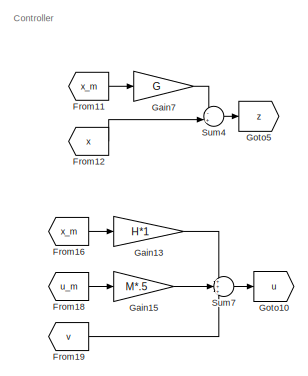
[diagram: root canvas - part 1/4, top center region]
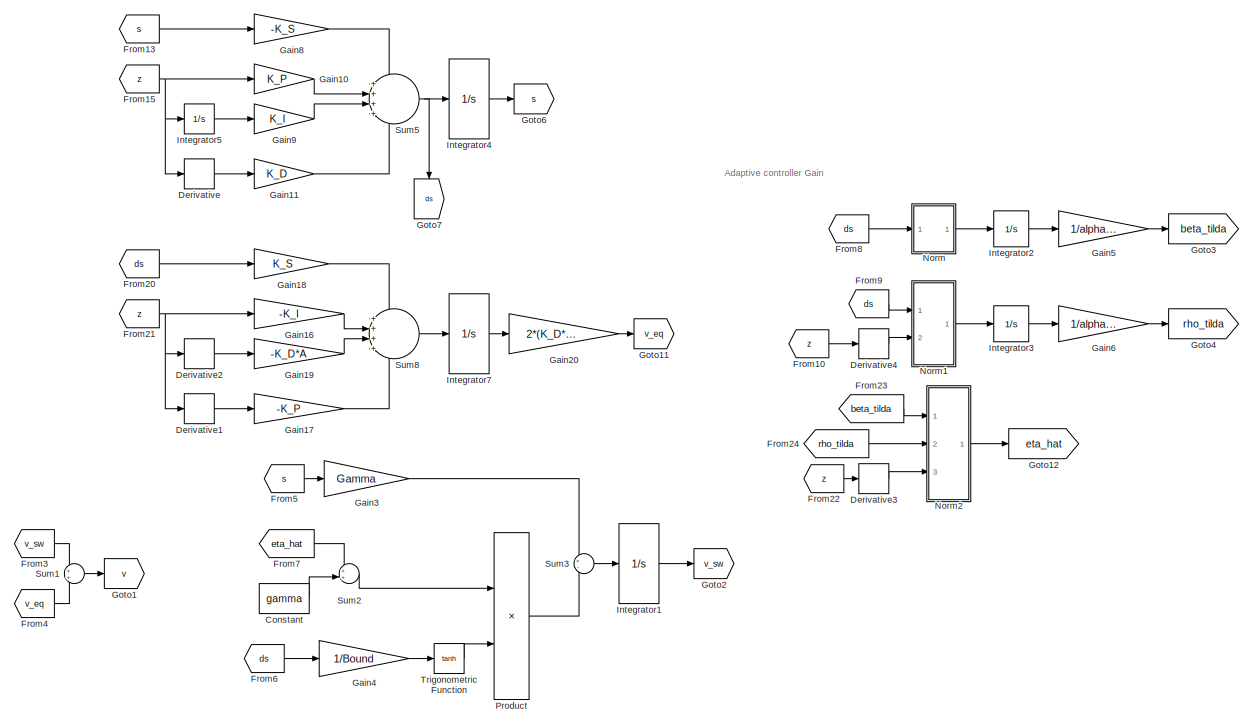
[diagram: root canvas - part 2/4, top right region]
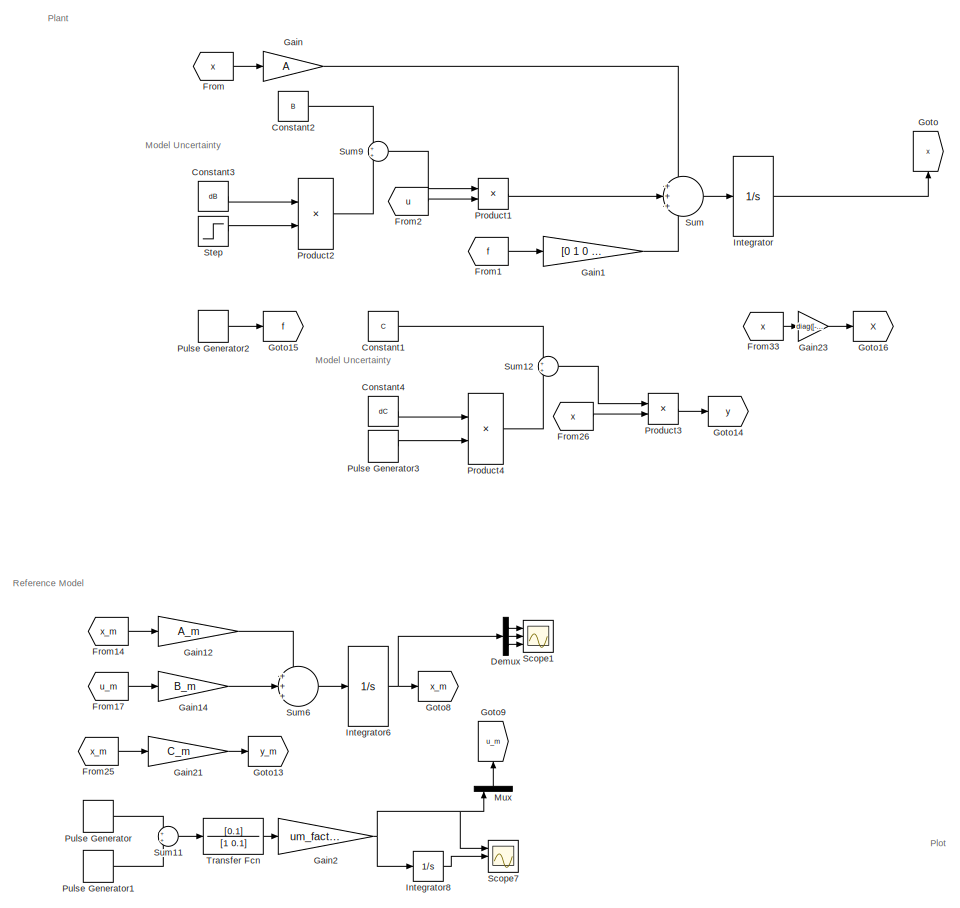
[diagram: root canvas - part 3/4, middle left region]
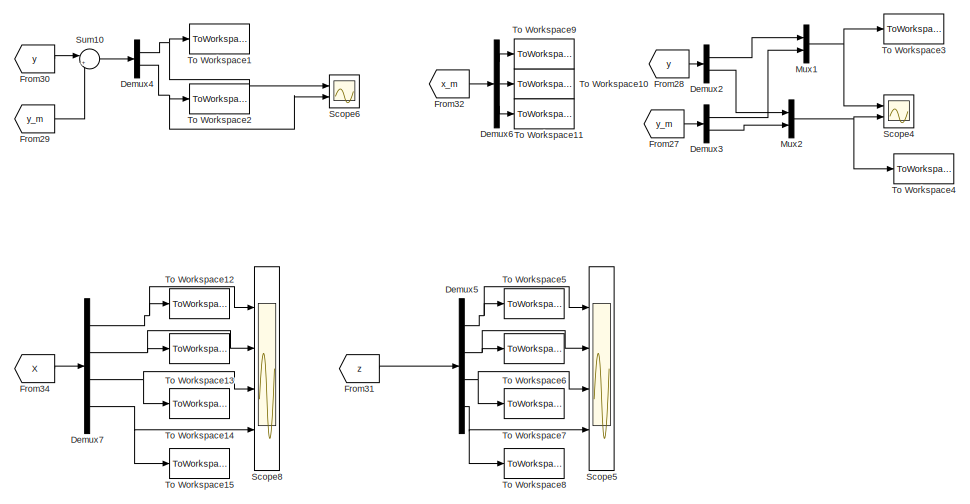
[diagram: root canvas - part 4/4, bottom center region]
MODEL slx_e4a85e4770d8
KIND model
CONFIG AbsTol = auto
CONFIG EnableMultiTasking = on
CONFIG FixedStep = 1e-2
CONFIG MaxStep = auto
CONFIG MinStep = auto
CONFIG RelTol = 1e-8
CONFIG SampleTimeConstraint = Unconstrained
CONFIG Solver = ode3
CONFIG SolverName = ode3
CONFIG StartTime = 0.0
CONFIG StopTime = 500
BLOCK [Constant] Constant
  Value = gamma
BLOCK [Constant] Constant1
  Value = C
BLOCK [Constant] Constant2
  Value = B
BLOCK [Constant] Constant3
  Value = dB
BLOCK [Constant] Constant4
  Value = dC
BLOCK [Demux] Demux
  DisplayOption = bar
  Outputs = 3
  Ports = [1, 3]
BLOCK [Demux] Demux2
  DisplayOption = bar
  Outputs = 2
  Ports = [1, 2]
BLOCK [Demux] Demux3
  DisplayOption = bar
  Outputs = 2
  Ports = [1, 2]
BLOCK [Demux] Demux4
  DisplayOption = bar
  Outputs = 2
  Ports = [1, 2]
BLOCK [Demux] Demux5
  DisplayOption = bar
  Ports = [1, 4]
BLOCK [Demux] Demux6
  DisplayOption = bar
  Outputs = 3
  Ports = [1, 3]
BLOCK [Demux] Demux7
  DisplayOption = bar
  Ports = [1, 4]
BLOCK [Derivative] Derivative
BLOCK [Derivative] Derivative1
BLOCK [Derivative] Derivative2
BLOCK [Derivative] Derivative3
BLOCK [Derivative] Derivative4
BLOCK [From] From
  GotoTag = x
BLOCK [From] From1
  GotoTag = f
BLOCK [From] From10
  GotoTag = z
BLOCK [From] From11
  GotoTag = x_m
BLOCK [From] From12
  GotoTag = x
BLOCK [From] From13
  GotoTag = s
BLOCK [From] From14
  GotoTag = x_m
BLOCK [From] From15
  GotoTag = z
BLOCK [From] From16
  GotoTag = x_m
BLOCK [From] From17
  GotoTag = u_m
BLOCK [From] From18
  GotoTag = u_m
BLOCK [From] From19
  GotoTag = v
BLOCK [From] From2
  GotoTag = u
BLOCK [From] From20
  GotoTag = ds
BLOCK [From] From21
  GotoTag = z
BLOCK [From] From22
  GotoTag = z
BLOCK [From] From23
  GotoTag = beta_tilda
BLOCK [From] From24
  GotoTag = rho_tilda
BLOCK [From] From25
  GotoTag = x_m
BLOCK [From] From26
  GotoTag = x
BLOCK [From] From27
  GotoTag = y_m
BLOCK [From] From28
  GotoTag = y
BLOCK [From] From29
  GotoTag = y_m
BLOCK [From] From3
  GotoTag = v_sw
BLOCK [From] From30
  GotoTag = y
BLOCK [From] From31
  GotoTag = z
BLOCK [From] From32
  GotoTag = x_m
BLOCK [From] From33
  GotoTag = x
BLOCK [From] From34
  GotoTag = X
BLOCK [From] From4
  GotoTag = v_eq
BLOCK [From] From5
  GotoTag = s
BLOCK [From] From6
  GotoTag = ds
BLOCK [From] From7
  GotoTag = eta_hat
BLOCK [From] From8
  GotoTag = ds
BLOCK [From] From9
  GotoTag = ds
BLOCK [Gain] Gain
  Gain = A
  Multiplication = Matrix(K*u)
  OutDataTypeStr = Inherit: Inherit via internal rule
  ParamDataTypeStr = Inherit: Inherit via internal rule
  SaturateOnIntegerOverflow = off
BLOCK [Gain] Gain1
  Gain = [0 1 0 0]'
  Multiplication = Matrix(K*u)
  OutDataTypeStr = Inherit: Inherit via internal rule
  ParamDataTypeStr = Inherit: Inherit via internal rule
  SaturateOnIntegerOverflow = off
BLOCK [Gain] Gain10
  Gain = K_P
  Multiplication = Matrix(K*u)
  OutDataTypeStr = Inherit: Inherit via internal rule
  ParamDataTypeStr = Inherit: Inherit via internal rule
  SaturateOnIntegerOverflow = off
BLOCK [Gain] Gain11
  Gain = K_D
  Multiplication = Matrix(K*u)
  OutDataTypeStr = Inherit: Inherit via internal rule
  ParamDataTypeStr = Inherit: Inherit via internal rule
  SaturateOnIntegerOverflow = off
BLOCK [Gain] Gain12
  Gain = A_m
  Multiplication = Matrix(K*u)
  OutDataTypeStr = Inherit: Inherit via internal rule
  ParamDataTypeStr = Inherit: Inherit via internal rule
  SaturateOnIntegerOverflow = off
BLOCK [Gain] Gain13
  Gain = H*1
  Multiplication = Matrix(K*u)
  OutDataTypeStr = Inherit: Inherit via internal rule
  ParamDataTypeStr = Inherit: Inherit via internal rule
  SaturateOnIntegerOverflow = off
BLOCK [Gain] Gain14
  Gain = B_m
  Multiplication = Matrix(K*u)
  OutDataTypeStr = Inherit: Inherit via internal rule
  ParamDataTypeStr = Inherit: Inherit via internal rule
  SaturateOnIntegerOverflow = off
BLOCK [Gain] Gain15
  Gain = M*.5
  Multiplication = Matrix(K*u)
  OutDataTypeStr = Inherit: Inherit via internal rule
  ParamDataTypeStr = Inherit: Inherit via internal rule
  SaturateOnIntegerOverflow = off
BLOCK [Gain] Gain16
  Gain = -K_I
  Multiplication = Matrix(K*u)
  OutDataTypeStr = Inherit: Inherit via internal rule
  ParamDataTypeStr = Inherit: Inherit via internal rule
  SaturateOnIntegerOverflow = off
BLOCK [Gain] Gain17
  Gain = -K_P
  Multiplication = Matrix(K*u)
  OutDataTypeStr = Inherit: Inherit via internal rule
  ParamDataTypeStr = Inherit: Inherit via internal rule
  SaturateOnIntegerOverflow = off
BLOCK [Gain] Gain18
  Gain = K_S
  Multiplication = Matrix(K*u)
  OutDataTypeStr = Inherit: Inherit via internal rule
  ParamDataTypeStr = Inherit: Inherit via internal rule
  SaturateOnIntegerOverflow = off
BLOCK [Gain] Gain19
  Gain = -K_D*A
  Multiplication = Matrix(K*u)
  OutDataTypeStr = Inherit: Inherit via internal rule
  ParamDataTypeStr = Inherit: Inherit via internal rule
  SaturateOnIntegerOverflow = off
BLOCK [Gain] Gain2
  Gain = um_factor
  OutDataTypeStr = Inherit: Inherit via internal rule
  ParamDataTypeStr = Inherit: Inherit via internal rule
  SaturateOnIntegerOverflow = off
BLOCK [Gain] Gain20
  Gain = 2*(K_D*B)^-1
  Multiplication = Matrix(K*u)
  OutDataTypeStr = Inherit: Inherit via internal rule
  ParamDataTypeStr = Inherit: Inherit via internal rule
  SaturateOnIntegerOverflow = off
BLOCK [Gain] Gain21
  Gain = C_m
  Multiplication = Matrix(K*u)
  OutDataTypeStr = Inherit: Inherit via internal rule
  ParamDataTypeStr = Inherit: Inherit via internal rule
  SaturateOnIntegerOverflow = off
BLOCK [Gain] Gain23
  Gain = diag([-1 1 1 1])
  Multiplication = Matrix(K*u)
  OutDataTypeStr = Inherit: Inherit via internal rule
  ParamDataTypeStr = Inherit: Inherit via internal rule
  SaturateOnIntegerOverflow = off
BLOCK [Gain] Gain3
  Gain = Gamma
  Multiplication = Matrix(K*u)
  OutDataTypeStr = Inherit: Inherit via internal rule
  ParamDataTypeStr = Inherit: Inherit via internal rule
  SaturateOnIntegerOverflow = off
BLOCK [Gain] Gain4
  Gain = 1/Bound
  OutDataTypeStr = Inherit: Inherit via internal rule
  ParamDataTypeStr = Inherit: Inherit via internal rule
  SaturateOnIntegerOverflow = off
BLOCK [Gain] Gain5
  Gain = 1/alpha_0
  OutDataTypeStr = Inherit: Inherit via internal rule
  ParamDataTypeStr = Inherit: Inherit via internal rule
  SaturateOnIntegerOverflow = off
BLOCK [Gain] Gain6
  Gain = 1/alpha_1
  OutDataTypeStr = Inherit: Inherit via internal rule
  ParamDataTypeStr = Inherit: Inherit via internal rule
  SaturateOnIntegerOverflow = off
BLOCK [Gain] Gain7
  Gain = G
  Multiplication = Matrix(K*u)
  OutDataTypeStr = Inherit: Inherit via internal rule
  ParamDataTypeStr = Inherit: Inherit via internal rule
  SaturateOnIntegerOverflow = off
BLOCK [Gain] Gain8
  Gain = -K_S
  Multiplication = Matrix(K*u)
  OutDataTypeStr = Inherit: Inherit via internal rule
  ParamDataTypeStr = Inherit: Inherit via internal rule
  SaturateOnIntegerOverflow = off
BLOCK [Gain] Gain9
  Gain = K_I
  Multiplication = Matrix(K*u)
  OutDataTypeStr = Inherit: Inherit via internal rule
  ParamDataTypeStr = Inherit: Inherit via internal rule
  SaturateOnIntegerOverflow = off
BLOCK [Goto] Goto
  GotoTag = x
BLOCK [Goto] Goto1
  GotoTag = v
BLOCK [Goto] Goto10
  GotoTag = u
BLOCK [Goto] Goto11
  GotoTag = v_eq
BLOCK [Goto] Goto12
  GotoTag = eta_hat
BLOCK [Goto] Goto13
  GotoTag = y_m
BLOCK [Goto] Goto14
  GotoTag = y
BLOCK [Goto] Goto15
  GotoTag = f
BLOCK [Goto] Goto16
  GotoTag = X
BLOCK [Goto] Goto2
  GotoTag = v_sw
BLOCK [Goto] Goto3
  GotoTag = beta_tilda
BLOCK [Goto] Goto4
  GotoTag = rho_tilda
BLOCK [Goto] Goto5
  GotoTag = z
BLOCK [Goto] Goto6
  GotoTag = s
BLOCK [Goto] Goto7
  GotoTag = ds
BLOCK [Goto] Goto8
  GotoTag = x_m
BLOCK [Goto] Goto9
  GotoTag = u_m
BLOCK [Integrator] Integrator
  InitialCondition = [50 60 9 -950]
  Ports = [1, 1]
BLOCK [Integrator] Integrator1
  InitialCondition = zeros(3,1)
  Ports = [1, 1]
BLOCK [Integrator] Integrator2
  Ports = [1, 1]
BLOCK [Integrator] Integrator3
  Ports = [1, 1]
BLOCK [Integrator] Integrator4
  Ports = [1, 1]
BLOCK [Integrator] Integrator5
  Ports = [1, 1]
BLOCK [Integrator] Integrator6
  InitialCondition = [ 60 9 0.05]
  Ports = [1, 1]
BLOCK [Integrator] Integrator7
  Ports = [1, 1]
BLOCK [Integrator] Integrator8
  InitialCondition = 35
  Ports = [1, 1]
BLOCK [Mux] Mux
  DisplayOption = bar
  Inputs = 3
  Ports = [3, 1]
BLOCK [Mux] Mux1
  DisplayOption = bar
  Inputs = 2
  Ports = [2, 1]
BLOCK [Mux] Mux2
  DisplayOption = bar
  Inputs = 2
  Ports = [2, 1]
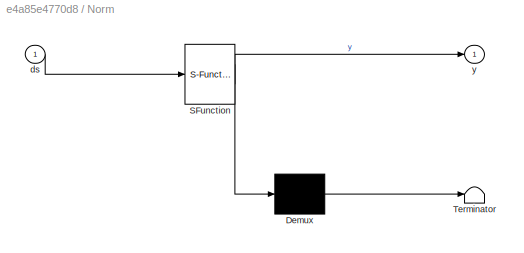
BLOCK [SubSystem] Norm
  ErrorFcn = Stateflow.Translate.translate
  PermitHierarchicalResolution = ExplicitOnly
  Ports = [1, 1]
  RequestExecContextInheritance = off
  SFBlockType = MATLAB Function
  TreatAsAtomicUnit = on
  Variant = off
BLOCK [Demux] Norm/ Demux 
  Outputs = 1
  Ports = [1, 1]
BLOCK [S-Function] Norm/ SFunction 
  EnableBusSupport = on
  FunctionName = sf_sfun
  PortCounts = [1 2]
  Ports = [1, 2]
  SFcnIsStateOwnerBlock = off
  SFunctionDeploymentMode = off
  Tag = Stateflow S-Function simulation 2
BLOCK [Terminator] Norm/ Terminator 
BLOCK [Inport] Norm/ds
  IconDisplay = Port number
BLOCK [Outport] Norm/y
  IconDisplay = Port number
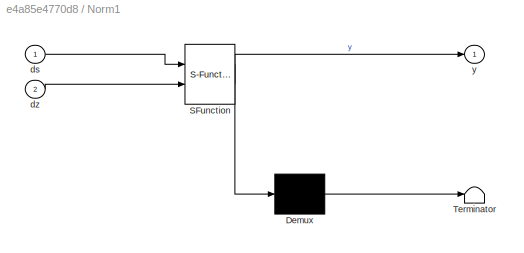
BLOCK [SubSystem] Norm1
  ErrorFcn = Stateflow.Translate.translate
  PermitHierarchicalResolution = ExplicitOnly
  Ports = [2, 1]
  RequestExecContextInheritance = off
  SFBlockType = MATLAB Function
  TreatAsAtomicUnit = on
  Variant = off
BLOCK [Demux] Norm1/ Demux 
  Outputs = 1
  Ports = [1, 1]
BLOCK [S-Function] Norm1/ SFunction 
  EnableBusSupport = on
  FunctionName = sf_sfun
  PortCounts = [2 2]
  Ports = [2, 2]
  SFcnIsStateOwnerBlock = off
  SFunctionDeploymentMode = off
  Tag = Stateflow S-Function simulation 1
BLOCK [Terminator] Norm1/ Terminator 
BLOCK [Inport] Norm1/ds
  IconDisplay = Port number
BLOCK [Inport] Norm1/dz
  IconDisplay = Port number
  Port = 2
BLOCK [Outport] Norm1/y
  IconDisplay = Port number
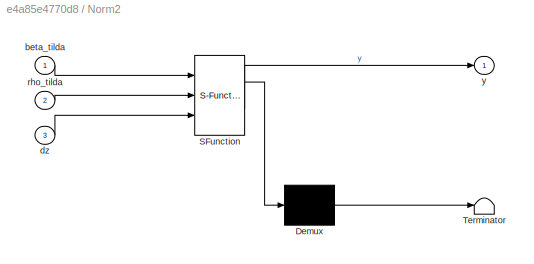
BLOCK [SubSystem] Norm2
  ErrorFcn = Stateflow.Translate.translate
  PermitHierarchicalResolution = ExplicitOnly
  Ports = [3, 1]
  RequestExecContextInheritance = off
  SFBlockType = MATLAB Function
  TreatAsAtomicUnit = on
  Variant = off
BLOCK [Demux] Norm2/ Demux 
  Outputs = 1
  Ports = [1, 1]
BLOCK [S-Function] Norm2/ SFunction 
  EnableBusSupport = on
  FunctionName = sf_sfun
  PortCounts = [3 2]
  Ports = [3, 2]
  SFcnIsStateOwnerBlock = off
  SFunctionDeploymentMode = off
  Tag = Stateflow S-Function simulation 3
BLOCK [Terminator] Norm2/ Terminator 
BLOCK [Inport] Norm2/beta_tilda
  IconDisplay = Port number
BLOCK [Inport] Norm2/dz
  IconDisplay = Port number
  Port = 3
BLOCK [Inport] Norm2/rho_tilda
  IconDisplay = Port number
  Port = 2
BLOCK [Outport] Norm2/y
  IconDisplay = Port number
BLOCK [Product] Product
  InputSameDT = off
  OutDataTypeStr = Inherit: Inherit via internal rule
  Ports = [2, 1]
  RndMeth = Floor
  SaturateOnIntegerOverflow = off
BLOCK [Product] Product1
  InputSameDT = off
  Multiplication = Matrix(*)
  OutDataTypeStr = Inherit: Inherit via internal rule
  Ports = [2, 1]
  RndMeth = Floor
  SaturateOnIntegerOverflow = off
BLOCK [Product] Product2
  InputSameDT = off
  OutDataTypeStr = Inherit: Inherit via internal rule
  Ports = [2, 1]
  RndMeth = Floor
  SaturateOnIntegerOverflow = off
BLOCK [Product] Product3
  InputSameDT = off
  Multiplication = Matrix(*)
  OutDataTypeStr = Inherit: Inherit via internal rule
  Ports = [2, 1]
  RndMeth = Floor
  SaturateOnIntegerOverflow = off
BLOCK [Product] Product4
  InputSameDT = off
  OutDataTypeStr = Inherit: Inherit via internal rule
  Ports = [2, 1]
  RndMeth = Floor
  SaturateOnIntegerOverflow = off
BLOCK [DiscretePulseGenerator] Pulse Generator
  Amplitude = 1.9
  Period = 100
  Ports = [0, 1]
  PulseType = Time based
  PulseWidth = 50
BLOCK [DiscretePulseGenerator] Pulse Generator1
  Amplitude = -.5
  Period = 100
  PhaseDelay = 50
  Ports = [0, 1]
  PulseType = Time based
  PulseWidth = 50
BLOCK [DiscretePulseGenerator] Pulse Generator2
  Amplitude = 10
  Period = 60
  Ports = [0, 1]
  PulseType = Time based
  PulseWidth = 50
BLOCK [DiscretePulseGenerator] Pulse Generator3
  Period = 100
  Ports = [0, 1]
  PulseType = Time based
  PulseWidth = 50
BLOCK [Scope] Scope1
  NumInputPorts = 3
  Ports = [3]
  ScopeSpecificationString = C++SS(StrPVP('Location','[1, 48, 1367, 727]'),StrPVP('Open','off'),MxPVP('AxesTitles',53,'struct(''axes1'',''%<SignalLabel>'',''axes2'',''%<SignalLabel>'',''axes3'',''%<SignalLabel>'')'),MxPVP('ScopeGraphics',56,'struct(''FigureColor'',''[0.5 0.5 0.5]'',''AxesColor'',''[0 0 0]'',''AxesTickColor'',''[1 1 1]'',''LineColors'',''[1 1 0;1 0 1;0 1 1;1 0 0;0 1 0;0 0 1]'',''LineStyles'',''-|-|-|-|-|-'',''...<+302ch>
BLOCK [Scope] Scope4
  NumInputPorts = 2
  Ports = [2]
  ScopeSpecificationString = C++SS(StrPVP('Location','[1, 48, 1367, 727]'),StrPVP('Open','off'),StrPVP('ZoomMode','yonly'),MxPVP('AxesTitles',53,'struct(''axes1'',''%<SignalLabel>'',''axes2'',''%<SignalLabel>'')'),MxPVP('ScopeGraphics',56,'struct(''FigureColor'',''[0.5 0.5 0.5]'',''AxesColor'',''[0 0 0]'',''AxesTickColor'',''[1 1 1]'',''LineColors'',''[1 1 0;1 0 1;0 1 1;1 0 0;0 1 0;0 0 1]'',''LineStyles'',''-|-|-|-|-|-'',''Li...<+295ch>
BLOCK [Scope] Scope5
  NumInputPorts = 4
  Ports = [4]
  ScopeSpecificationString = C++SS(StrPVP('Location','[1, 48, 1367, 727]'),StrPVP('Open','off'),MxPVP('AxesTitles',53,'struct(''axes1'',''%<SignalLabel>'',''axes2'',''%<SignalLabel>'',''axes3'',''%<SignalLabel>'',''axes4'',''%<SignalLabel>'')'),MxPVP('ScopeGraphics',56,'struct(''FigureColor'',''[0.5 0.5 0.5]'',''AxesColor'',''[0 0 0]'',''AxesTickColor'',''[1 1 1]'',''LineColors'',''[1 1 0;1 0 1;0 1 1;1 0 0;0 1 0;0 0 1]'',''Li...<+353ch>
BLOCK [Scope] Scope6
  NumInputPorts = 2
  Ports = [2]
  ScopeSpecificationString = C++SS(StrPVP('Location','[1, 48, 1367, 727]'),StrPVP('Open','off'),StrPVP('ZoomMode','yonly'),MxPVP('AxesTitles',53,'struct(''axes1'',''%<SignalLabel>'',''axes2'',''%<SignalLabel>'')'),MxPVP('ScopeGraphics',56,'struct(''FigureColor'',''[0.5 0.5 0.5]'',''AxesColor'',''[0 0 0]'',''AxesTickColor'',''[1 1 1]'',''LineColors'',''[1 1 0;1 0 1;0 1 1;1 0 0;0 1 0;0 0 1]'',''LineStyles'',''-|-|-|-|-|-'',''Li...<+295ch>
BLOCK [Scope] Scope7
  NumInputPorts = 3
  Ports = [3]
  ScopeSpecificationString = C++SS(StrPVP('Location','[1, 48, 1367, 727]'),StrPVP('Open','off'),MxPVP('AxesTitles',53,'struct(''axes1'',''%<SignalLabel>'',''axes2'',''%<SignalLabel>'',''axes3'',''%<SignalLabel>'')'),MxPVP('ScopeGraphics',56,'struct(''FigureColor'',''[0.5 0.5 0.5]'',''AxesColor'',''[0 0 0]'',''AxesTickColor'',''[1 1 1]'',''LineColors'',''[1 1 0;1 0 1;0 1 1;1 0 0;0 1 0;0 0 1]'',''LineStyles'',''-|-|-|-|-|-'',''...<+302ch>
BLOCK [Scope] Scope8
  NumInputPorts = 4
  Ports = [4]
  ScopeSpecificationString = C++SS(StrPVP('Location','[1, 48, 1367, 727]'),StrPVP('Open','off'),MxPVP('AxesTitles',53,'struct(''axes1'',''%<SignalLabel>'',''axes2'',''%<SignalLabel>'',''axes3'',''%<SignalLabel>'',''axes4'',''%<SignalLabel>'')'),MxPVP('ScopeGraphics',56,'struct(''FigureColor'',''[0.5 0.5 0.5]'',''AxesColor'',''[0 0 0]'',''AxesTickColor'',''[1 1 1]'',''LineColors'',''[1 1 0;1 0 1;0 1 1;1 0 0;0 1 0;0 0 1]'',''Li...<+353ch>
BLOCK [Step] Step
  After = 1.5
  SampleTime = 0
  Time = 80
BLOCK [Sum] Sum
  IconShape = round
  InputSameDT = off
  Inputs = +++
  OutDataTypeStr = Inherit: Inherit via internal rule
  Ports = [3, 1]
  SaturateOnIntegerOverflow = off
BLOCK [Sum] Sum1
  IconShape = round
  InputSameDT = off
  OutDataTypeStr = Inherit: Inherit via internal rule
  Ports = [2, 1]
  SaturateOnIntegerOverflow = off
BLOCK [Sum] Sum10
  IconShape = round
  InputSameDT = off
  Inputs = |+-
  OutDataTypeStr = Inherit: Inherit via internal rule
  Ports = [2, 1]
  SaturateOnIntegerOverflow = off
BLOCK [Sum] Sum11
  IconShape = round
  InputSameDT = off
  OutDataTypeStr = Inherit: Inherit via internal rule
  Ports = [2, 1]
  SaturateOnIntegerOverflow = off
BLOCK [Sum] Sum12
  IconShape = round
  InputSameDT = off
  OutDataTypeStr = Inherit: Inherit via internal rule
  Ports = [2, 1]
  SaturateOnIntegerOverflow = off
BLOCK [Sum] Sum2
  IconShape = round
  InputSameDT = off
  OutDataTypeStr = Inherit: Inherit via internal rule
  Ports = [2, 1]
  SaturateOnIntegerOverflow = off
BLOCK [Sum] Sum3
  IconShape = round
  InputSameDT = off
  Inputs = +-
  OutDataTypeStr = Inherit: Inherit via internal rule
  Ports = [2, 1]
  SaturateOnIntegerOverflow = off
BLOCK [Sum] Sum4
  IconShape = round
  InputSameDT = off
  Inputs = -+
  OutDataTypeStr = Inherit: Inherit via internal rule
  Ports = [2, 1]
  SaturateOnIntegerOverflow = off
BLOCK [Sum] Sum5
  IconShape = round
  InputSameDT = off
  Inputs = ++++
  OutDataTypeStr = Inherit: Inherit via internal rule
  Ports = [4, 1]
  SaturateOnIntegerOverflow = off
BLOCK [Sum] Sum6
  IconShape = round
  InputSameDT = off
  Inputs = +++
  OutDataTypeStr = Inherit: Inherit via internal rule
  Ports = [3, 1]
  SaturateOnIntegerOverflow = off
BLOCK [Sum] Sum7
  IconShape = round
  InputSameDT = off
  Inputs = +++
  OutDataTypeStr = Inherit: Inherit via internal rule
  Ports = [3, 1]
  SaturateOnIntegerOverflow = off
BLOCK [Sum] Sum8
  IconShape = round
  InputSameDT = off
  Inputs = ++++
  OutDataTypeStr = Inherit: Inherit via internal rule
  Ports = [4, 1]
  SaturateOnIntegerOverflow = off
BLOCK [Sum] Sum9
  IconShape = round
  InputSameDT = off
  OutDataTypeStr = Inherit: Inherit via internal rule
  Ports = [2, 1]
  SaturateOnIntegerOverflow = off
BLOCK [ToWorkspace] To Workspace1
  FixptAsFi = on
  MaxDataPoints = inf
  Ports = [1]
  SampleTime = -1
  Save2DSignal = 3-D array (concatenate along third dimension)
  SaveFormat = Timeseries
  VariableName = ey1
BLOCK [ToWorkspace] To Workspace10
  FixptAsFi = on
  MaxDataPoints = inf
  Ports = [1]
  SampleTime = -1
  Save2DSignal = 3-D array (concatenate along third dimension)
  SaveFormat = Timeseries
  VariableName = xm2
BLOCK [ToWorkspace] To Workspace11
  FixptAsFi = on
  MaxDataPoints = inf
  Ports = [1]
  SampleTime = -1
  Save2DSignal = 3-D array (concatenate along third dimension)
  SaveFormat = Timeseries
  VariableName = xm3
BLOCK [ToWorkspace] To Workspace12
  FixptAsFi = on
  MaxDataPoints = inf
  Ports = [1]
  SampleTime = -1
  Save2DSignal = 3-D array (concatenate along third dimension)
  SaveFormat = Timeseries
  VariableName = x1
BLOCK [ToWorkspace] To Workspace13
  FixptAsFi = on
  MaxDataPoints = inf
  Ports = [1]
  SampleTime = -1
  Save2DSignal = 3-D array (concatenate along third dimension)
  SaveFormat = Timeseries
  VariableName = x2
BLOCK [ToWorkspace] To Workspace14
  FixptAsFi = on
  MaxDataPoints = inf
  Ports = [1]
  SampleTime = -1
  Save2DSignal = 3-D array (concatenate along third dimension)
  SaveFormat = Timeseries
  VariableName = x3
BLOCK [ToWorkspace] To Workspace15
  FixptAsFi = on
  MaxDataPoints = inf
  Ports = [1]
  SampleTime = -1
  Save2DSignal = 3-D array (concatenate along third dimension)
  SaveFormat = Timeseries
  VariableName = x4
BLOCK [ToWorkspace] To Workspace2
  FixptAsFi = on
  MaxDataPoints = inf
  Ports = [1]
  SampleTime = -1
  Save2DSignal = 3-D array (concatenate along third dimension)
  SaveFormat = Timeseries
  VariableName = ey2
BLOCK [ToWorkspace] To Workspace3
  FixptAsFi = on
  MaxDataPoints = inf
  Ports = [1]
  SampleTime = -1
  Save2DSignal = 3-D array (concatenate along third dimension)
  SaveFormat = Timeseries
  VariableName = y1
BLOCK [ToWorkspace] To Workspace4
  FixptAsFi = on
  MaxDataPoints = inf
  Ports = [1]
  SampleTime = -1
  Save2DSignal = 3-D array (concatenate along third dimension)
  SaveFormat = Timeseries
  VariableName = y2
BLOCK [ToWorkspace] To Workspace5
  FixptAsFi = on
  MaxDataPoints = inf
  Ports = [1]
  SampleTime = -1
  Save2DSignal = 3-D array (concatenate along third dimension)
  SaveFormat = Timeseries
  VariableName = z1
BLOCK [ToWorkspace] To Workspace6
  FixptAsFi = on
  MaxDataPoints = inf
  Ports = [1]
  SampleTime = -1
  Save2DSignal = 3-D array (concatenate along third dimension)
  SaveFormat = Timeseries
  VariableName = z2
BLOCK [ToWorkspace] To Workspace7
  FixptAsFi = on
  MaxDataPoints = inf
  Ports = [1]
  SampleTime = -1
  Save2DSignal = 3-D array (concatenate along third dimension)
  SaveFormat = Timeseries
  VariableName = z3
BLOCK [ToWorkspace] To Workspace8
  FixptAsFi = on
  MaxDataPoints = inf
  Ports = [1]
  SampleTime = -1
  Save2DSignal = 3-D array (concatenate along third dimension)
  SaveFormat = Timeseries
  VariableName = z4
BLOCK [ToWorkspace] To Workspace9
  FixptAsFi = on
  MaxDataPoints = inf
  Ports = [1]
  SampleTime = -1
  Save2DSignal = 3-D array (concatenate along third dimension)
  SaveFormat = Timeseries
  VariableName = xm1
BLOCK [TransferFcn] Transfer Fcn
  Denominator = [1 0.1]
  Numerator = [0.1]
BLOCK [Trigonometry] Trigonometric Function
  Operator = tanh
  Ports = [1, 1]
ANNOTATION (root): Adaptive controller Gain
ANNOTATION (root): Controller
ANNOTATION (root): Model Uncertainty
ANNOTATION (root): Plant
ANNOTATION (root): Plot
ANNOTATION (root): Reference Model
LINE Constant1:1 -> Sum12:1
LINE Constant2:1 -> Sum9:1
LINE Constant3:1 -> Product2:1
LINE Constant4:1 -> Product4:1
LINE Constant:1 -> Sum2:2
LINE Demux2:1 -> Mux1:1
LINE Demux2:2 -> Mux2:1
LINE Demux3:1 -> Mux1:2
LINE Demux3:2 -> Mux2:2
NET Demux4:1 -> Scope6:1, To Workspace1:1
NET Demux4:2 -> Scope6:2, To Workspace2:1
NET Demux5:1 -> Scope5:1, To Workspace5:1
NET Demux5:2 -> Scope5:2, To Workspace6:1
NET Demux5:3 -> Scope5:3, To Workspace7:1
NET Demux5:4 -> Scope5:4, To Workspace8:1
LINE Demux6:1 -> To Workspace9:1
LINE Demux6:2 -> To Workspace10:1
LINE Demux6:3 -> To Workspace11:1
NET Demux7:1 -> Scope8:1, To Workspace12:1
NET Demux7:2 -> Scope8:2, To Workspace13:1
NET Demux7:3 -> Scope8:3, To Workspace14:1
NET Demux7:4 -> Scope8:4, To Workspace15:1
LINE Demux:1 -> Scope1:1
LINE Demux:2 -> Scope1:2
LINE Demux:3 -> Scope1:3
LINE Derivative1:1 -> Gain17:1
LINE Derivative2:1 -> Gain19:1
LINE Derivative3:1 -> Norm2:3
LINE Derivative4:1 -> Norm1:2
LINE Derivative:1 -> Gain11:1
LINE From10:1 -> Derivative4:1
LINE From11:1 -> Gain7:1
LINE From12:1 -> Sum4:2
LINE From13:1 -> Gain8:1
LINE From14:1 -> Gain12:1
NET From15:1 -> Derivative:1, Gain10:1, Integrator5:1
LINE From16:1 -> Gain13:1
LINE From17:1 -> Gain14:1
LINE From18:1 -> Gain15:1
LINE From19:1 -> Sum7:3
LINE From1:1 -> Gain1:1
LINE From20:1 -> Gain18:1
NET From21:1 -> Derivative1:1, Derivative2:1, Gain16:1
LINE From22:1 -> Derivative3:1
LINE From23:1 -> Norm2:1
LINE From24:1 -> Norm2:2
LINE From25:1 -> Gain21:1
LINE From26:1 -> Product3:2
LINE From27:1 -> Demux3:1
LINE From28:1 -> Demux2:1
LINE From29:1 -> Sum10:2
LINE From2:1 -> Product1:2
LINE From30:1 -> Sum10:1
LINE From31:1 -> Demux5:1
LINE From32:1 -> Demux6:1
LINE From33:1 -> Gain23:1
LINE From34:1 -> Demux7:1
LINE From3:1 -> Sum1:1
LINE From4:1 -> Sum1:2
LINE From5:1 -> Gain3:1
LINE From6:1 -> Gain4:1
LINE From7:1 -> Sum2:1
LINE From8:1 -> Norm:1
LINE From9:1 -> Norm1:1
LINE From:1 -> Gain:1
LINE Gain10:1 -> Sum5:2
LINE Gain11:1 -> Sum5:4
LINE Gain12:1 -> Sum6:1
LINE Gain13:1 -> Sum7:1
LINE Gain14:1 -> Sum6:2
LINE Gain15:1 -> Sum7:2
LINE Gain16:1 -> Sum8:2
LINE Gain17:1 -> Sum8:4
LINE Gain18:1 -> Sum8:1
LINE Gain19:1 -> Sum8:3
LINE Gain1:1 -> Sum:3
LINE Gain20:1 -> Goto11:1
LINE Gain21:1 -> Goto13:1
LINE Gain23:1 -> Goto16:1
NET Gain2:1 -> Integrator8:1, Mux:1, Scope7:1
LINE Gain3:1 -> Sum3:1
LINE Gain4:1 -> Trigonometric Function:1
LINE Gain5:1 -> Goto3:1
LINE Gain6:1 -> Goto4:1
LINE Gain7:1 -> Sum4:1
LINE Gain8:1 -> Sum5:1
LINE Gain9:1 -> Sum5:3
LINE Gain:1 -> Sum:1
LINE Integrator1:1 -> Goto2:1
LINE Integrator2:1 -> Gain5:1
LINE Integrator3:1 -> Gain6:1
LINE Integrator4:1 -> Goto6:1
LINE Integrator5:1 -> Gain9:1
NET Integrator6:1 -> Demux:1, Goto8:1
LINE Integrator7:1 -> Gain20:1
LINE Integrator8:1 -> Scope7:2
LINE Integrator:1 -> Goto:1
NET Mux1:1 -> Scope4:1, To Workspace3:1
NET Mux2:1 -> Scope4:2, To Workspace4:1
LINE Mux:1 -> Goto9:1
LINE Norm1:1 -> Integrator3:1
LINE Norm2:1 -> Goto12:1
LINE Norm:1 -> Integrator2:1
LINE Product1:1 -> Sum:2
LINE Product2:1 -> Sum9:2
LINE Product3:1 -> Goto14:1
LINE Product4:1 -> Sum12:2
LINE Product:1 -> Sum3:2
LINE Pulse Generator1:1 -> Sum11:2
LINE Pulse Generator2:1 -> Goto15:1
LINE Pulse Generator3:1 -> Product4:2
LINE Pulse Generator:1 -> Sum11:1
LINE Step:1 -> Product2:2
LINE Sum10:1 -> Demux4:1
LINE Sum11:1 -> Transfer Fcn:1
LINE Sum12:1 -> Product3:1
LINE Sum1:1 -> Goto1:1
LINE Sum2:1 -> Product:1
LINE Sum3:1 -> Integrator1:1
LINE Sum4:1 -> Goto5:1
NET Sum5:1 -> Goto7:1, Integrator4:1
LINE Sum6:1 -> Integrator6:1
LINE Sum7:1 -> Goto10:1
LINE Sum8:1 -> Integrator7:1
LINE Sum9:1 -> Product1:1
LINE Sum:1 -> Integrator:1
LINE Transfer Fcn:1 -> Gain2:1
LINE Trigonometric Function:1 -> Product:2
note: NET lines group one-source signal fan-out (src -> all destinations, sorted); 1:1 wires keep LINE
CHART Norm1 states=1 transitions=1
  STATE_LABEL 'eML_blk_kernel()'
  STATE_LABEL 'SCRIPT:\nfunction y = fcn(ds,dz)\n%#codegen\n\ny = norm(ds)*norm(dz);'
CHART Norm states=1 transitions=1
  STATE_LABEL 'eML_blk_kernel()'
  STATE_LABEL 'SCRIPT:\nfunction y = fcn(ds)\n%#codegen\n\ny = norm(ds);'
CHART Norm2 states=1 transitions=1
  STATE_LABEL 'eML_blk_kernel()'
  STATE_LABEL 'SCRIPT:\nfunction y = fcn(beta_tilda,rho_tilda,dz)\n%#codegen\n\ny = 0*(beta_tilda + rho_tilda*norm(dz));'
